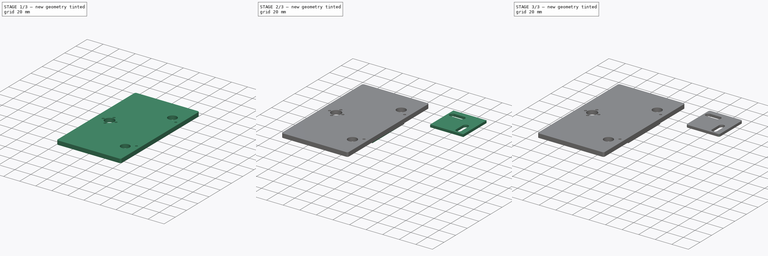
[diagram: build sequence overview — one tinted view per stage of 3, left to right]
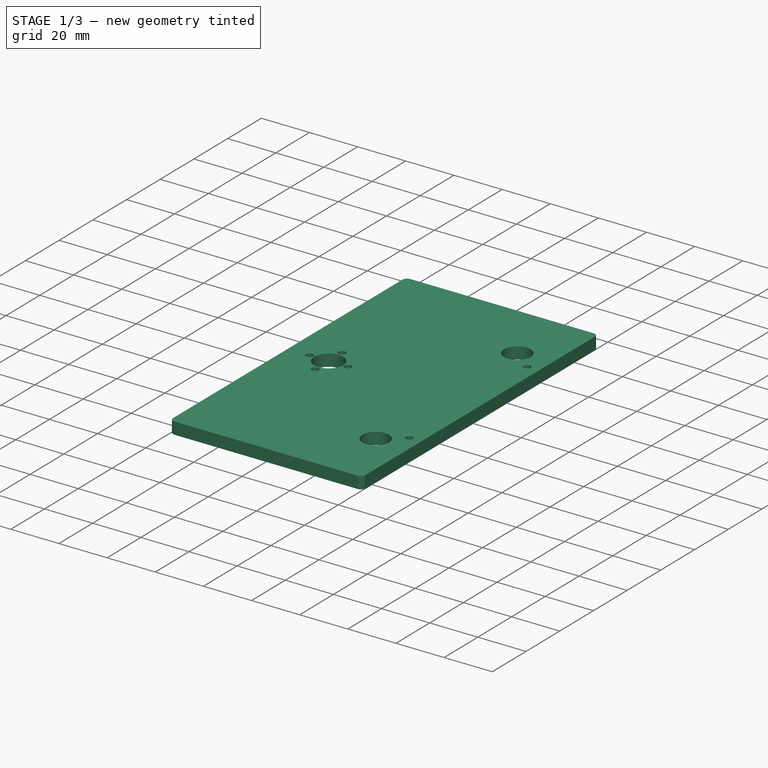
[diagram: stage 1 of 3 — iso view after this stage's code; geometry added in this stage tinted green]
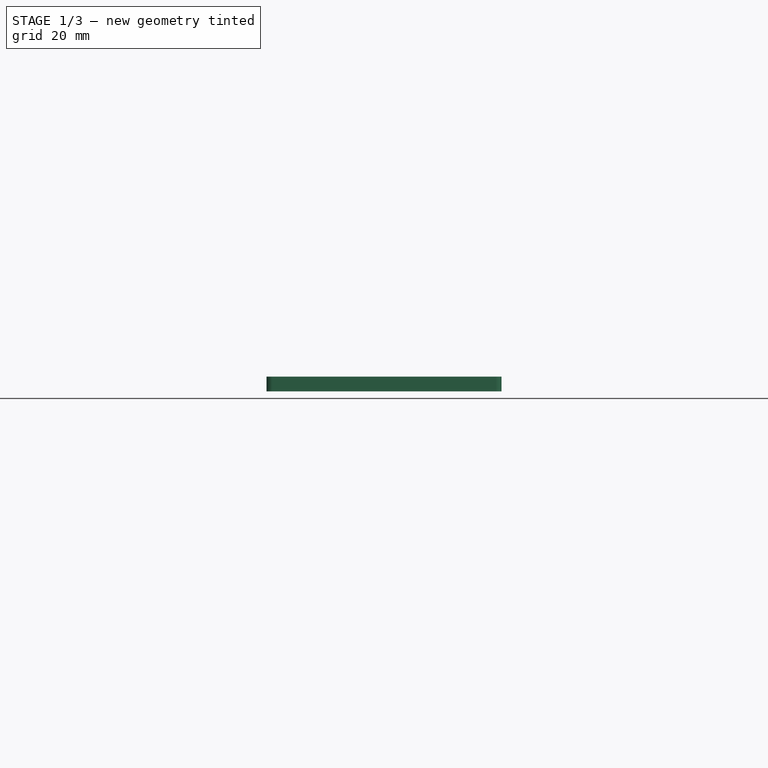
[diagram: stage 1 of 3 — front view after this stage's code; geometry added in this stage tinted green]
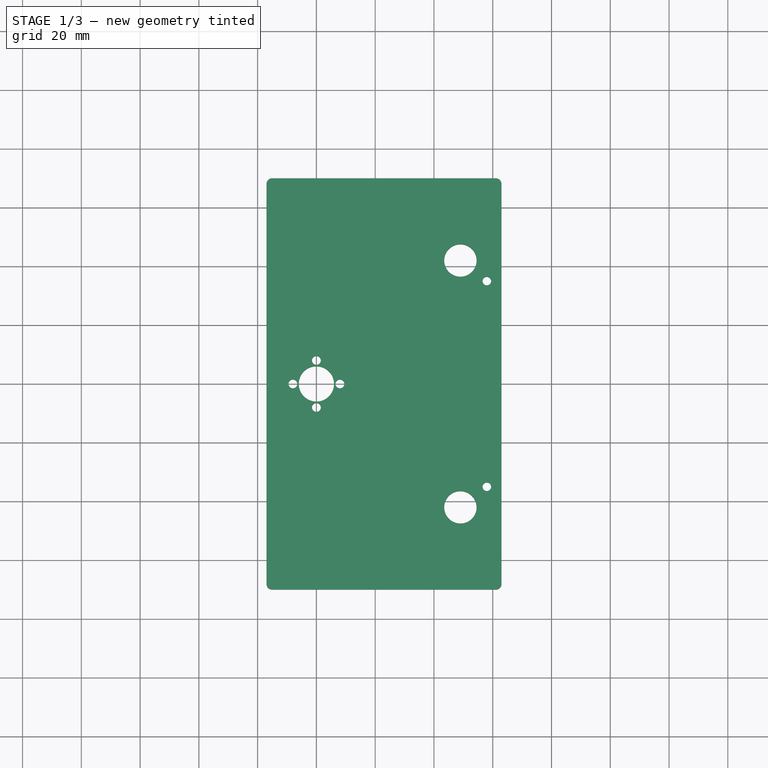
[diagram: stage 1 of 3 — top view after this stage's code; geometry added in this stage tinted green]
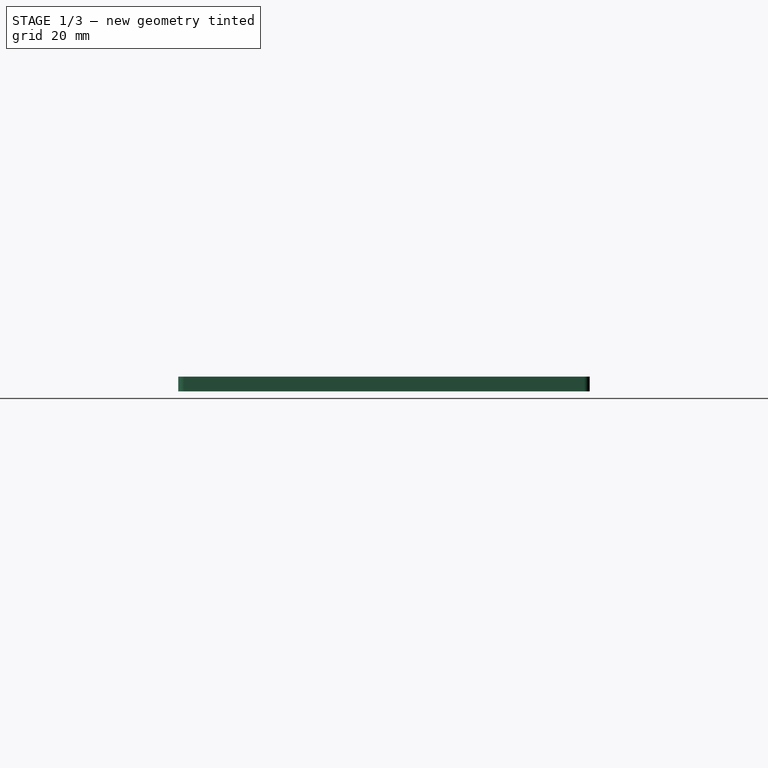
[diagram: stage 1 of 3 — right view after this stage's code; geometry added in this stage tinted green]
FCSTD DOCUMENT  (FreeCAD 1.1R20260414 (Git shallow))
Label: Unnamed3
License: All rights reserved
LicenseURL: https://en.wikipedia.org/wiki/All_rights_reserved
objects: Sketcher::SketchObject×5, PartDesign::Pad×4, App::Point×3, PartDesign::Fillet×3, PartDesign::Body×3, TechDraw::DrawSVGTemplate×3, TechDraw::DrawProjGroupItem×3, TechDraw::DrawPage×3, PartDesign::Hole×1
note: 37 computed .brp shape members not serialized (recipe doc carries the construction recipe); baked Part::Feature solids carry a one-line shape summary decoded from their .brp

FEATURE [App::Point] Origin009  label="Origin011"
  Role = Origin
FEATURE [Sketcher::SketchObject] Sketch002
  ArcFitTolerance = 1e-06
  ExternalTypes = [0]
  FullyConstrained = true
  MakeInternals = false
  MapMode = 5
  Placement = pos=(0,-3.1e-15,36) rot=(0,0,1;0rad)
  _ExternalGeoVersion = 1
  sketch-geometry (11):
    g0: LineSegment StartX=-17 StartY=-70 StartZ=0 EndX=63 EndY=-70 EndZ=0
    g1: LineSegment StartX=63 StartY=-70 StartZ=0 EndX=63 EndY=70 EndZ=0
    g2: LineSegment StartX=63 StartY=70 StartZ=0 EndX=-17 EndY=70 EndZ=0
    g3: LineSegment StartX=-17 StartY=70 StartZ=0 EndX=-17 EndY=-70 EndZ=0
    g4: Circle CenterX=0 CenterY=0 CenterZ=0 NormalX=0 NormalY=0 NormalZ=1 AngleXU=0 Radius=6
    g5: Circle CenterX=0 CenterY=-8 CenterZ=0 NormalX=0 NormalY=0 NormalZ=1 AngleXU=0 Radius=1.5
    g6: Circle CenterX=-8 CenterY=0 CenterZ=0 NormalX=0 NormalY=0 NormalZ=1 AngleXU=0 Radius=1.5
    g7: Circle CenterX=8 CenterY=0 CenterZ=0 NormalX=0 NormalY=0 NormalZ=1 AngleXU=0 Radius=1.5
    g8: Circle CenterX=0 CenterY=8 CenterZ=0 NormalX=0 NormalY=0 NormalZ=1 AngleXU=0 Radius=1.5
    g9: Circle CenterX=49 CenterY=42 CenterZ=0 NormalX=0 NormalY=0 NormalZ=1 AngleXU=0 Radius=5.5
    g10: Circle CenterX=49 CenterY=-42 CenterZ=0 NormalX=0 NormalY=0 NormalZ=1 AngleXU=0 Radius=5.5
  constraints (32):
    c: Coincident(g0,g1)
    c: Coincident(g1,g2)
    c: Coincident(g2,g3)
    c: Coincident(g3,g0)
    c: Horizontal(g0)
    c: Horizontal(g2)
    c: Vertical(g1)
    c: Vertical(g3)
    c: DistanceY(g3,g3) = 140
    c: Distance(g-2,g3) = 17
    c: DistanceX(g0,g0) = 80
    c: Distance(g-1,g0) = 70
    c: Diameter(g4) = 12
    c: Coincident(g4,g-1)
    c: Diameter(g5) = 3
    c: PointOnObject(g5,g-2)
    c: Distance(g5,g4) = 2
    c: PointOnObject(g6,g-1)
    c: PointOnObject(g7,g-1)
    c: PointOnObject(g8,g-2)
    c: Equal(g6,g5)
    c: Equal(g7,g5)
    c: Equal(g8,g7)
    c: Distance(g6,g4) = 2
    c: Distance(g7,g4) = 2
    c: Distance(g8,g4) = 2
    c: Diameter(g9) = 11
    c: Distance(g9,g3) = 66
    c: Equal(g10,g9)
    c: Distance(g10,g3) = 66
    c: Distance(g9,g2) = 28
    c: Distance(g10,g0) = 28
FEATURE [PartDesign::Pad] Pad002
  Direction = (0,0,1)
  Length = 5
  Length2 = 10
  Placement = pos=(0,-3.1e-15,36) rot=(0,0,1;0rad)
  Profile = -> Sketch002
  ReferenceAxis = -> Sketch002 [N_Axis]
  Refine = true
  SideType = 0
  Suppressed = false
  Type = 0
  Type2 = 0
FEATURE [PartDesign::Body] Body
  AllowCompound = true
  Group = -> [Sketch001,Pad,Fillet]
  Origin = -> Origin
  Tip = -> Fillet
FEATURE [PartDesign::Fillet] Fillet001
  Base = -> Pad002 [Edge8,Edge1,Edge2,Edge5]
  BaseFeature = -> Pad002
  Placement = pos=(0,-3.1e-15,36) rot=(0,0,1;0rad)
  Radius = 2
  Refine = true
  SupportTransform = false
  Suppressed = false
  UseAllEdges = false
FEATURE [PartDesign::Body] Body003
  AllowCompound = true
  Group = -> [Sketch,Pad003,Fillet002]
  Origin = -> Origin010
  Tip = -> Fillet002
FEATURE [TechDraw::DrawSVGTemplate] Template
  Height = 210
  Orientation = 1
  Template = <path>
  Width = 297
FEATURE [TechDraw::DrawProjGroupItem] View
  CoarseView = false
  Direction = (0,0,-1)
  Focus = 100
  HardHidden = false
  IsoCount = 0
  IsoHidden = false
  IsoVisible = false
  LockPosition = false
  Perspective = false
  Rotation = 0
  RotationVector = (1,0,0)
  ScaleType = 0
  ScrubCount = 1
  SeamHidden = false
  SeamVisible = false
  SmoothHidden = false
  SmoothVisible = true
  Source = -> [Fillet]
  Type = 0
  X = 148.5
  XDirection = (1e-16,-1,0)
  Y = 105
FEATURE [TechDraw::DrawPage] Page
  KeepUpdated = true
  NextBalloonIndex = 1
  ProjectionType = 0
  Template = -> Template
  Views = -> [View]
FEATURE [TechDraw::DrawSVGTemplate] Template001
  Height = 210
  Orientation = 1
  Template = <path>
  Width = 297
FEATURE [TechDraw::DrawSVGTemplate] Template002
  Height = 210
  Orientation = 1
  Template = <path>
  Width = 297
FEATURE [TechDraw::DrawProjGroupItem] View002
  CoarseView = false
  Direction = (0,0,-1)
  Focus = 100
  HardHidden = false
  IsoCount = 0
  IsoHidden = false
  IsoVisible = false
  LockPosition = false
  Perspective = false
  Rotation = 0
  RotationVector = (1,0,0)
  ScaleType = 0
  ScrubCount = 1
  SeamHidden = false
  SeamVisible = false
  SmoothHidden = false
  SmoothVisible = true
  Source = -> [Body003]
  Type = 0
  X = 148.5
  XDirection = (1,0,0)
  Y = 105
FEATURE [TechDraw::DrawPage] Page002
  KeepUpdated = true
  NextBalloonIndex = 1
  ProjectionType = 0
  Template = -> Template002
  Views = -> [View002]
FEATURE [Sketcher::SketchObject] Sketch003
  ArcFitTolerance = 1e-06
  AttachmentSupport = -> [Fillet001]
  ExternalTypes = [0]
  FullyConstrained = true
  MakeInternals = false
  MapMode = 5
  Placement = pos=(0,-3.1e-15,36) rot=(1,0,0;3.14159rad)
  _ExternalGeoVersion = 1
  sketch-geometry (2):
    g0: Circle CenterX=58 CenterY=35 CenterZ=0 NormalX=0 NormalY=0 NormalZ=1 AngleXU=0 Radius=1.1
    g1: Circle CenterX=58 CenterY=-35 CenterZ=0 NormalX=0 NormalY=0 NormalZ=1 AngleXU=0 Radius=1.1
  constraints (6):
    c: Distance(g0,g-2) = 58
    c: Diameter(g0) = 2.2
    c: Distance(g0,g-1) = 35
    c: Equal(g1,g0)
    c: Distance(g1,g-2) = 58
    c: Distance(g1,g-1) = 35
FEATURE [PartDesign::Hole] Hole
  BaseFeature = -> Fillet001
  BaseProfileType = 7
  CustomThreadClearance = 0
  Depth = 5
  DepthType = 0
  Diameter = 2.9
  DrillForDepth = false
  DrillPoint = 1
  DrillPointAngle = 118
  HoleCutCountersinkAngle = 90
  HoleCutCustomValues = false
  HoleCutDepth = 0
  HoleCutDiameter = 0
  HoleCutType = 0
  ModelThread = false
  Placement = pos=(0,-3.1e-15,36) rot=(0,0,1;0rad)
  Profile = -> Sketch003
  Refine = true
  Suppressed = false
  Tapered = false
  TaperedAngle = 90
  ThreadClass = 0
  ThreadDepth = 5
  ThreadDepthType = 0
  ThreadDiameter = 2.5
  ThreadDirection = 0
  ThreadFit = 0
  ThreadSize = 8
  ThreadType = 1
  Threaded = false
  UseCustomThreadClearance = false
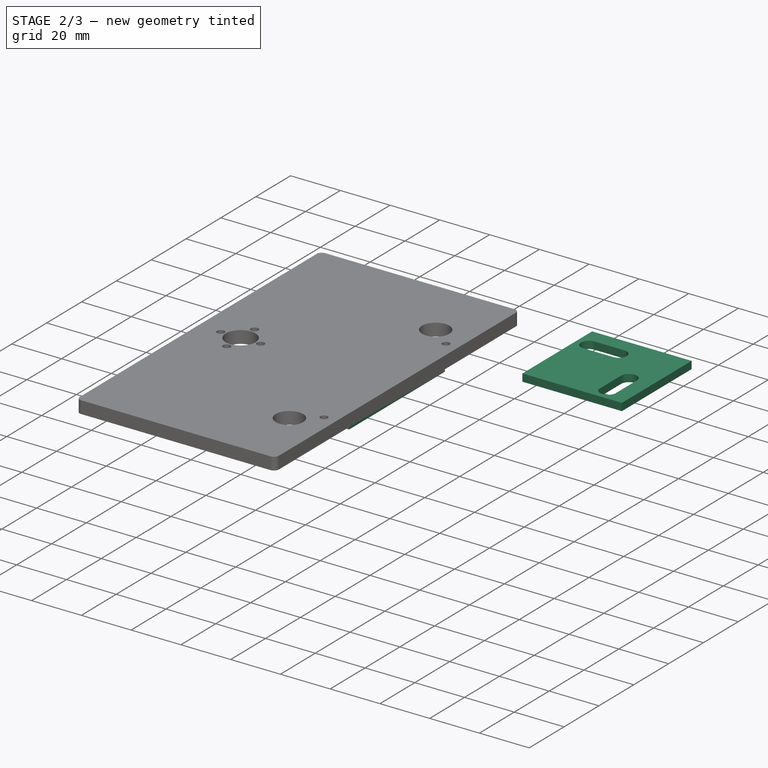
[diagram: stage 2 of 3 — iso view after this stage's code; geometry added in this stage tinted green]
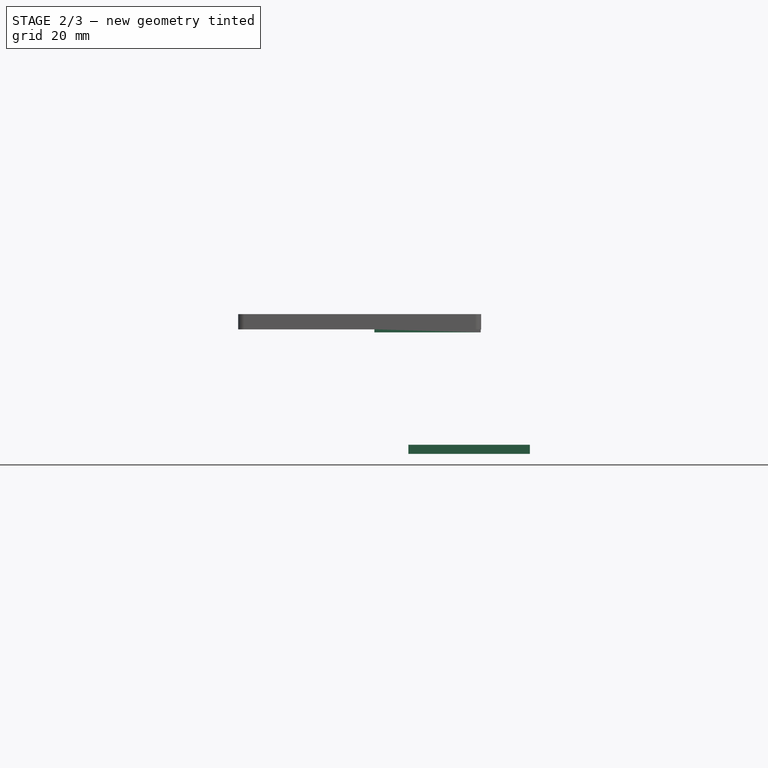
[diagram: stage 2 of 3 — front view after this stage's code; geometry added in this stage tinted green]
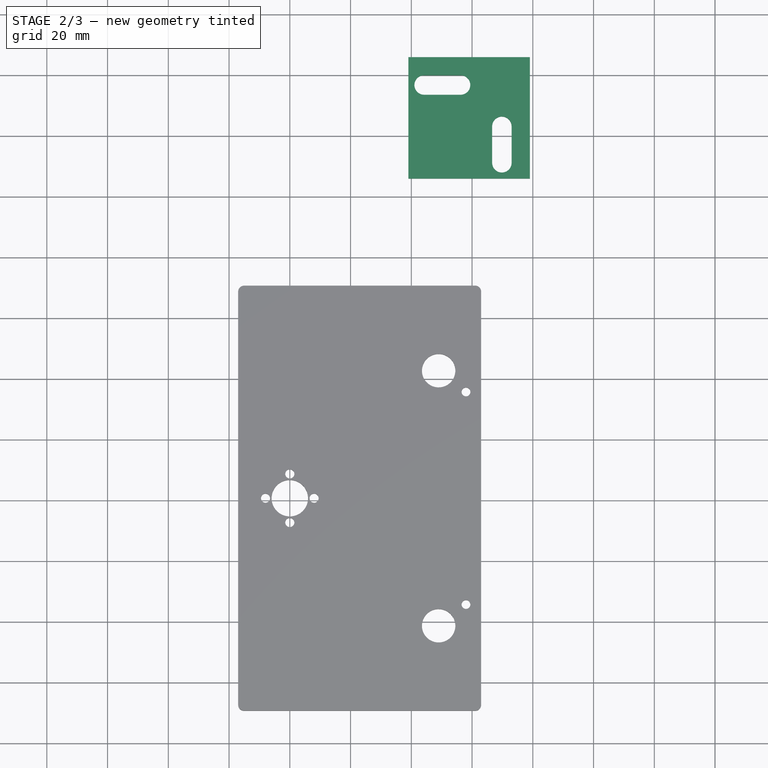
[diagram: stage 2 of 3 — top view after this stage's code; geometry added in this stage tinted green]
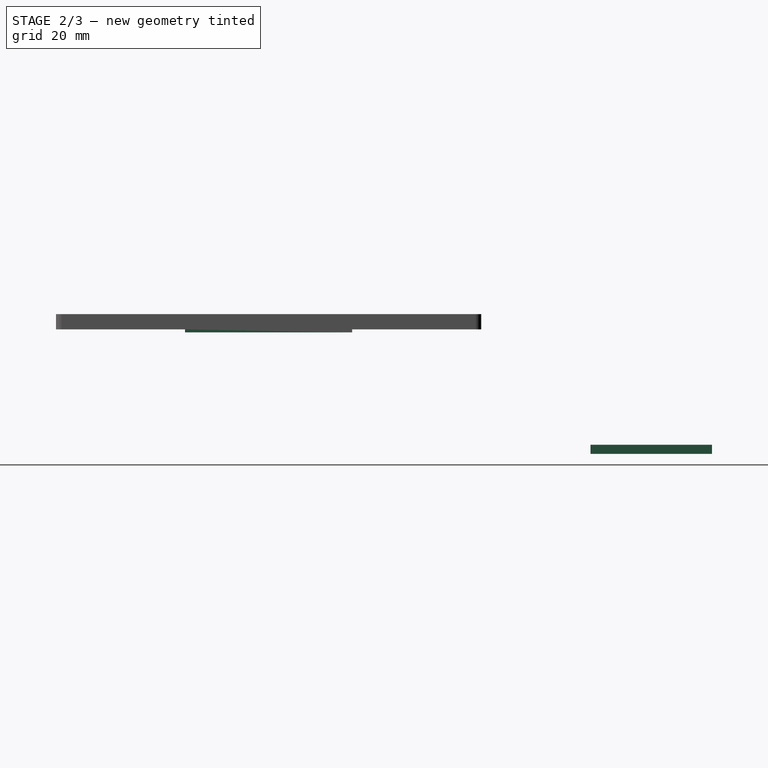
[diagram: stage 2 of 3 — right view after this stage's code; geometry added in this stage tinted green]
FEATURE [App::Point] Origin011  label="Origin013"
  Role = Origin
FEATURE [Sketcher::SketchObject] Sketch
  ArcFitTolerance = 1e-06
  ExternalTypes = [0]
  FullyConstrained = true
  MakeInternals = false
  MapMode = 5
  Placement = pos=(559,126,-2) rot=(0.707107,-0.707107,0;3.14159rad)
  _ExternalGeoVersion = 1
  sketch-geometry (12):
    g0: LineSegment StartX=20 StartY=479.98 StartZ=0 EndX=20 EndY=519.98 EndZ=0
    g1: LineSegment StartX=20 StartY=519.98 StartZ=0 EndX=-20 EndY=519.98 EndZ=0
    g2: LineSegment StartX=-20 StartY=519.98 StartZ=0 EndX=-20 EndY=479.98 EndZ=0
    g3: LineSegment StartX=-20 StartY=479.98 StartZ=0 EndX=20 EndY=479.98 EndZ=0
    g4: ArcOfCircle CenterX=-10.8 CenterY=514.78 CenterZ=0 NormalX=0 NormalY=0 NormalZ=1 AngleXU=0 Radius=3.2 StartAngle=1.4e-14 EndAngle=3.14159
    g5: ArcOfCircle CenterX=-10.8 CenterY=502.78 CenterZ=0 NormalX=0 NormalY=0 NormalZ=1 AngleXU=0 Radius=3.2 StartAngle=3.14159 EndAngle=6.28319
    g6: LineSegment StartX=-7.6 StartY=514.78 StartZ=0 EndX=-7.6 EndY=502.78 EndZ=0
    g7: LineSegment StartX=-14 StartY=514.78 StartZ=0 EndX=-14 EndY=502.78 EndZ=0
    g8: ArcOfCircle CenterX=2.8 CenterY=489.18 CenterZ=0 NormalX=0 NormalY=0 NormalZ=1 AngleXU=0 Radius=3.2 StartAngle=1.5708 EndAngle=4.71239
    g9: ArcOfCircle CenterX=14.8 CenterY=489.18 CenterZ=0 NormalX=0 NormalY=0 NormalZ=1 AngleXU=0 Radius=3.2 StartAngle=4.71239 EndAngle=7.85398
    g10: LineSegment StartX=2.8 StartY=492.38 StartZ=0 EndX=14.8 EndY=492.38 EndZ=0
    g11: LineSegment StartX=2.8 StartY=485.98 StartZ=0 EndX=14.8 EndY=485.98 EndZ=0
  constraints (32):
    c: Coincident(g0,g1)
    c: Coincident(g1,g2)
    c: Coincident(g2,g3)
    c: Coincident(g3,g0)
    c: Vertical(g0)
    c: Vertical(g2)
    c: Horizontal(g1)
    c: Horizontal(g3)
    c: DistanceY(g2,g2) = 40
    c: Distance(g3,g3) = 40
    c: Distance(g-2,g2) = 20
    c: Distance(g-1,g3) = 479.98
    c: Tangent(g4,g6) = 1.5708
    c: Tangent(g4,g7) = -1.5708
    c: Tangent(g5,g6) = 1.5708
    c: Tangent(g5,g7) = -1.5708
    c: Equal(g4,g5)
    c: Distance(g4,g5) = 12
    c: Radius(g4) = 3.2
    c: Vertical(g6)
    c: Tangent(g8,g10) = 1.5708
    c: Tangent(g8,g11) = -1.5708
    c: Tangent(g9,g10) = 1.5708
    c: Tangent(g9,g11) = -1.5708
    c: Equal(g8,g9)
    c: Distance(g8,g9) = 12
    c: Radius(g8) = 3.2
    c: Horizontal(g10)
    c: Distance(g4,g1) = 2
    c: Distance(g9,g0) = 2
    c: Distance(g2,g7) = 6
    c: Distance(g3,g11) = 6
FEATURE [PartDesign::Pad] Pad003
  Direction = (0,0,-1)
  Length = 3
  Length2 = 10
  Placement = pos=(559,126,-2) rot=(0.707107,-0.707107,0;3.14159rad)
  Profile = -> Sketch
  ReferenceAxis = -> Sketch [N_Axis]
  Refine = true
  SideType = 0
  Suppressed = false
  Type = 0
  Type2 = 0
FEATURE [Sketcher::SketchObject] Sketch004
  ArcFitTolerance = 1e-06
  AttachmentSupport = -> [Hole]
  ExternalTypes = [0]
  FullyConstrained = true
  MakeInternals = false
  MapMode = 5
  Placement = pos=(0,-3.1e-15,36) rot=(1,0,0;3.14159rad)
  _ExternalGeoVersion = 1
  sketch-geometry (4):
    g0: LineSegment StartX=27.85 StartY=-27.5 StartZ=0 EndX=62.85 EndY=-27.5 EndZ=0
    g1: LineSegment StartX=62.85 StartY=27.5 StartZ=0 EndX=27.85 EndY=27.5 EndZ=0
    g2: LineSegment StartX=27.85 StartY=27.5 StartZ=0 EndX=27.85 EndY=-27.5 EndZ=0
    g3: LineSegment StartX=62.85 StartY=-27.5 StartZ=0 EndX=62.85 EndY=27.5 EndZ=0
  constraints (12):
    c: Coincident(g1,g2)
    c: Coincident(g2,g0)
    c: Vertical(g2)
    c: Distance(g0,g1) = 55
    c: Horizontal(g1)
    c: Coincident(g1,g3)
    c: Horizontal(g0)
    c: Coincident(g0,g3)
    c: Distance(g1,g1) = 35
    c: Distance(g-1,g1) = 27.5
    c: Distance(g-2,g2) = 27.85
    c: Distance(g0,g0) = 35
FEATURE [PartDesign::Pad] Pad004
  BaseFeature = -> Hole
  Direction = (0,0,-1)
  Length = 1
  Length2 = 10
  Placement = pos=(0,-3.1e-15,36) rot=(0,0,1;0rad)
  Profile = -> Sketch004
  ReferenceAxis = -> Sketch004 [N_Axis]
  Refine = true
  SideType = 0
  Suppressed = false
  Type = 0
  Type2 = 0
FEATURE [PartDesign::Body] Body002
  AllowCompound = true
  Group = -> [Sketch002,Pad002,Fillet001,Sketch003,Hole,Sketch004,Pad004]
  Origin = -> Origin008
  Tip = -> Pad004
FEATURE [TechDraw::DrawProjGroupItem] View003
  CoarseView = false
  Direction = (0,0,-1)
  Focus = 100
  HardHidden = false
  IsoCount = 0
  IsoHidden = false
  IsoVisible = false
  LockPosition = false
  Perspective = false
  Rotation = 0
  RotationVector = (1,0,0)
  ScaleType = 0
  ScrubCount = 1
  SeamHidden = false
  SeamVisible = false
  SmoothHidden = false
  SmoothVisible = true
  Source = -> [Body002]
  Type = 0
  X = 148.5
  XDirection = (1,0,0)
  Y = 105
FEATURE [TechDraw::DrawPage] Page001
  KeepUpdated = true
  NextBalloonIndex = 1
  ProjectionType = 0
  Template = -> Template001
  Views = -> [View003]
note: 3 file-system paths scrubbed to <path> (originals preserved in the JSON sidecar)
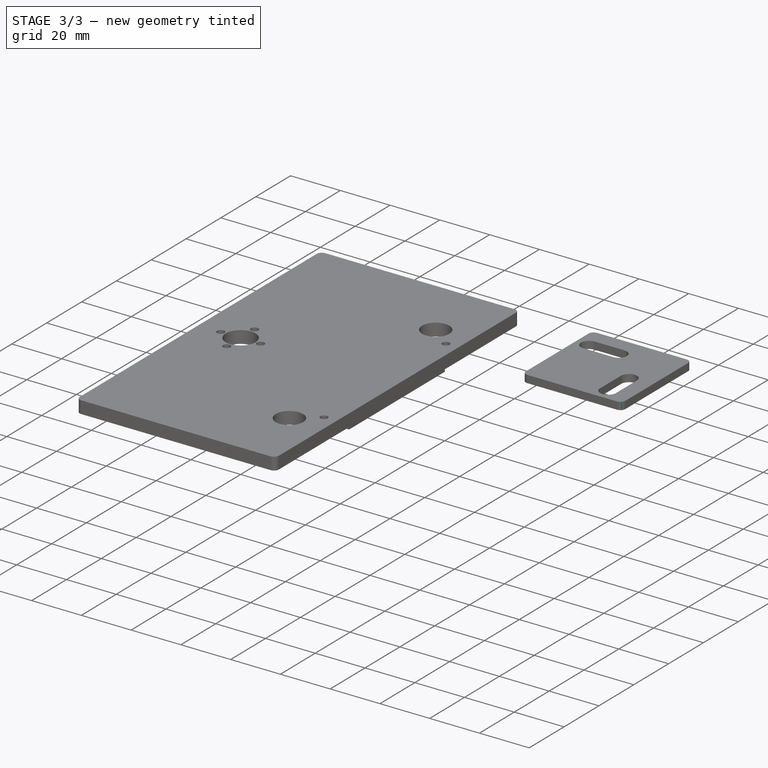
[diagram: stage 3 of 3 — iso view after this stage's code; geometry added in this stage tinted green]
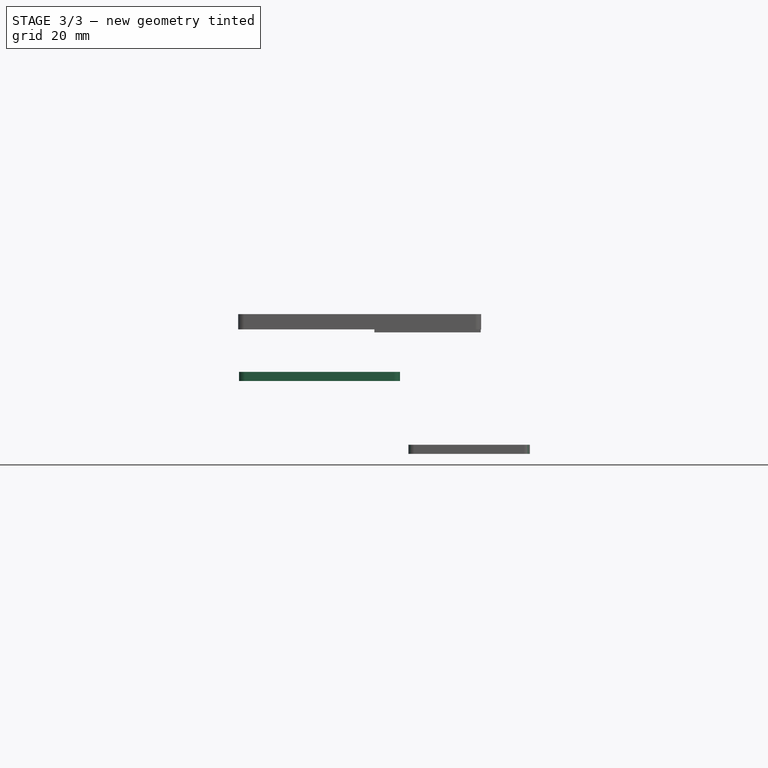
[diagram: stage 3 of 3 — front view after this stage's code; geometry added in this stage tinted green]
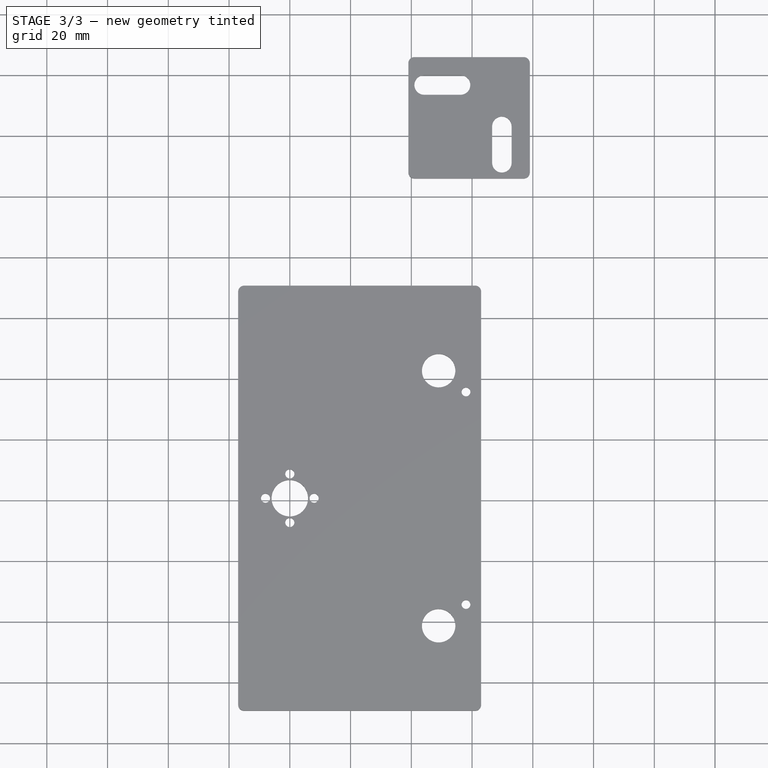
[diagram: stage 3 of 3 — top view after this stage's code; geometry added in this stage tinted green]
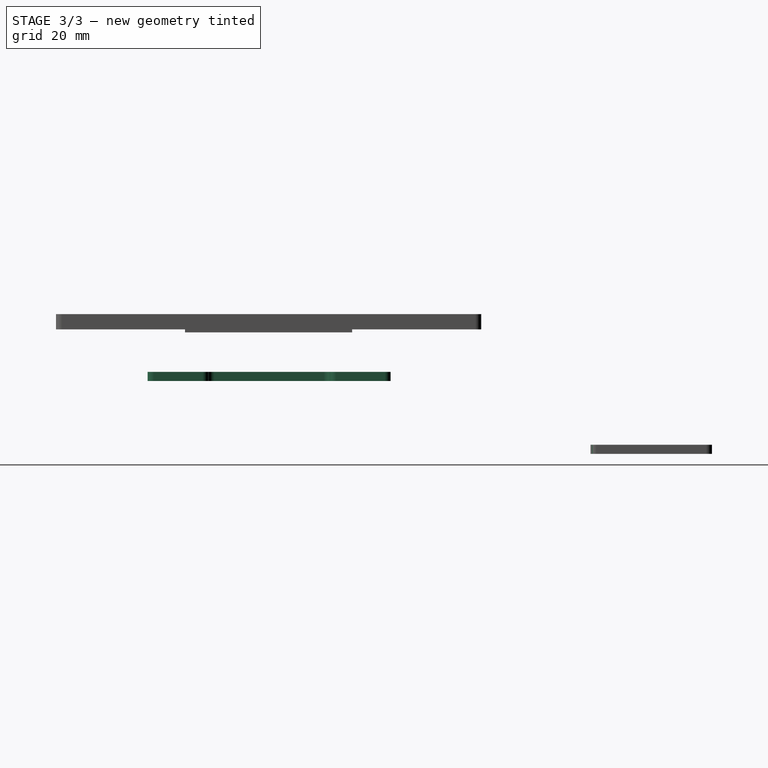
[diagram: stage 3 of 3 — right view after this stage's code; geometry added in this stage tinted green]
FEATURE [App::Point] Origin001
  Role = Origin
FEATURE [Sketcher::SketchObject] Sketch001
  ArcFitTolerance = 1e-06
  ExternalTypes = [0]
  FullyConstrained = true
  MakeInternals = false
  MapMode = 5
  Placement = pos=(0,0,19) rot=(0,0,1;0rad)
  _ExternalGeoVersion = 1
  sketch-geometry (24):
    g0: LineSegment StartX=15 StartY=-19.81 StartZ=0 EndX=36.27 EndY=-19.81 EndZ=0
    g1: LineSegment StartX=36.27 StartY=-19.81 StartZ=0 EndX=36.27 EndY=-39.81 EndZ=0
    g2: LineSegment StartX=36.27 StartY=-39.81 StartZ=0 EndX=-16.73 EndY=-39.81 EndZ=0
    g3: LineSegment StartX=-16.73 StartY=-39.81 StartZ=0 EndX=-16.73 EndY=40.19 EndZ=0
    g4: LineSegment StartX=-16.73 StartY=40.19 StartZ=0 EndX=36.27 EndY=40.19 EndZ=0
    g5: LineSegment StartX=36.27 StartY=40.19 StartZ=0 EndX=36.27 EndY=20.19 EndZ=0
    g6: LineSegment StartX=36.27 StartY=20.19 StartZ=0 EndX=15 EndY=20.19 EndZ=0
    g7: LineSegment StartX=15 StartY=20.19 StartZ=0 EndX=15 EndY=-19.81 EndZ=0
    g8: Circle CenterX=-13.5 CenterY=-14.5 CenterZ=0 NormalX=0 NormalY=0 NormalZ=1 AngleXU=0 Radius=1.2
    g9: Circle CenterX=-13.5 CenterY=-22.5 CenterZ=0 NormalX=0 NormalY=0 NormalZ=1 AngleXU=0 Radius=1.2
    g10: Circle CenterX=-13.5 CenterY=-30.5 CenterZ=0 NormalX=0 NormalY=0 NormalZ=1 AngleXU=0 Radius=1.2
    g11: Circle CenterX=-8 CenterY=-35.99 CenterZ=0 NormalX=0 NormalY=0 NormalZ=1 AngleXU=0 Radius=1.2
    g12: Circle CenterX=8 CenterY=-35.99 CenterZ=0 NormalX=0 NormalY=0 NormalZ=1 AngleXU=0 Radius=1.2
    g13: Circle CenterX=13.49 CenterY=-30.51 CenterZ=0 NormalX=0 NormalY=0 NormalZ=1 AngleXU=0 Radius=1.2
    g14: Circle CenterX=13.49 CenterY=-22.51 CenterZ=0 NormalX=0 NormalY=0 NormalZ=1 AngleXU=0 Radius=1.2
    g15: Circle CenterX=0 CenterY=0 CenterZ=0 NormalX=0 NormalY=0 NormalZ=1 AngleXU=0 Radius=11.75
    g16: ArcOfCircle CenterX=21.07 CenterY=30.19 CenterZ=0 NormalX=0 NormalY=0 NormalZ=1 AngleXU=0 Radius=3.2 StartAngle=1.5708 EndAngle=4.71239
    g17: ArcOfCircle CenterX=31.07 CenterY=30.19 CenterZ=0 NormalX=0 NormalY=0 NormalZ=1 AngleXU=0 Radius=3.2 StartAngle=4.71239 EndAngle=7.85398
    g18: LineSegment StartX=21.07 StartY=33.39 StartZ=0 EndX=31.07 EndY=33.39 EndZ=0
    g19: LineSegment StartX=21.07 StartY=26.99 StartZ=0 EndX=31.07 EndY=26.99 EndZ=0
    g20: ArcOfCircle CenterX=21.07 CenterY=-29.81 CenterZ=0 NormalX=0 NormalY=0 NormalZ=1 AngleXU=0 Radius=3.2 StartAngle=1.5708 EndAngle=4.71239
    g21: ArcOfCircle CenterX=31.07 CenterY=-29.81 CenterZ=0 NormalX=0 NormalY=0 NormalZ=1 AngleXU=0 Radius=3.2 StartAngle=4.71239 EndAngle=7.85398
    g22: LineSegment StartX=21.07 StartY=-26.61 StartZ=0 EndX=31.07 EndY=-26.61 EndZ=0
    g23: LineSegment StartX=21.07 StartY=-33.01 StartZ=0 EndX=31.07 EndY=-33.01 EndZ=0
  constraints (67):
    c: Horizontal(g0)
    c: Coincident(g0,g1)
    c: Vertical(g1)
    c: Coincident(g1,g2)
    c: Horizontal(g2)
    c: Coincident(g2,g3)
    c: Vertical(g3)
    c: Coincident(g3,g4)
    c: Horizontal(g4)
    c: Coincident(g4,g5)
    c: Vertical(g5)
    c: Coincident(g5,g6)
    c: Horizontal(g6)
    c: Coincident(g6,g7)
    c: Coincident(g7,g0)
    c: Vertical(g7)
    c: DistanceY(g1,g1) = 20
    c: DistanceX(g2,g2) = 53
    c: Equal(g5,g1)
    c: DistanceY(g7,g7) = 40
    c: Equal(g4,g2)
    c: Distance(g-1,g4) = 40.19
    c: Distance(g-2,g3) = 16.73
    c: Distance(g-2,g7) = 15
    c: Radius(g8) = 1.2
    c: Distance(g8,g3) = 3.23
    c: DistanceY(g8,g-1) = 14.5
    c: Equal(g9,g8)
    c: Equal(g10,g9)
    c: Equal(g11,g10)
    c: Equal(g12,g11)
    c: Equal(g13,g12)
    c: Equal(g14,g13)
    c: Distance(g9,g3) = 3.23
    c: Distance(g10,g3) = 3.23
    c: DistanceY(g9,g8) = 8
    c: DistanceY(g10,g9) = 8
    c: Distance(g11,g2) = 3.82
    c: Distance(g12,g2) = 3.82
    c: Distance(g11,g3) = 8.73
    c: DistanceX(g11,g12) = 16
    c: Distance(g13,g2) = 9.3
    c: DistanceY(g13,g14) = 8
    c: Distance(g13,g1) = 22.78
    c: Diameter(g15) = 23.5
    c: Coincident(g15,g-1)
    c: Tangent(g16,g18) = 1.5708
    c: Tangent(g16,g19) = -1.5708
    c: Tangent(g17,g18) = 1.5708
    c: Tangent(g17,g19) = -1.5708
    c: Equal(g16,g17)
    c: Distance(g16,g17) = 10
    c: Radius(g16) = 3.2
    c: Horizontal(g18)
    c: Distance(g4,g18) = 6.8
    c: Distance(g17,g5) = 2
    c: Tangent(g20,g22) = 1.5708
    c: Tangent(g20,g23) = -1.5708
    c: Tangent(g21,g22) = 1.5708
    c: Tangent(g21,g23) = -1.5708
    c: Equal(g20,g21)
    c: Distance(g20,g21) = 10
    c: Radius(g20) = 3.2
    c: Horizontal(g22)
    c: Distance(g0,g22) = 6.8
    c: Distance(g21,g1) = 2
    c: Distance(g14,g1) = 22.78
FEATURE [PartDesign::Pad] Pad
  Direction = (0,0,1)
  Length = 3
  Length2 = 10
  Placement = pos=(0,0,19) rot=(0,0,1;0rad)
  Profile = -> Sketch001
  ReferenceAxis = -> Sketch001 [N_Axis]
  Refine = true
  SideType = 0
  Suppressed = false
  Type = 0
  Type2 = 0
FEATURE [PartDesign::Fillet] Fillet
  Base = -> Pad [Edge11,Edge14,Edge17,Edge2,Edge5,Edge8,Edge20,Edge1]
  BaseFeature = -> Pad
  Placement = pos=(0,0,19) rot=(0,0,1;0rad)
  Radius = 2
  Refine = true
  SupportTransform = false
  Suppressed = false
  UseAllEdges = false
FEATURE [PartDesign::Fillet] Fillet002
  Base = -> Pad003 [Edge5,Edge2,Edge1,Edge8]
  BaseFeature = -> Pad003
  Placement = pos=(559,126,-2) rot=(0.707107,-0.707107,0;3.14159rad)
  Radius = 2
  Refine = true
  SupportTransform = false
  Suppressed = false
  UseAllEdges = false
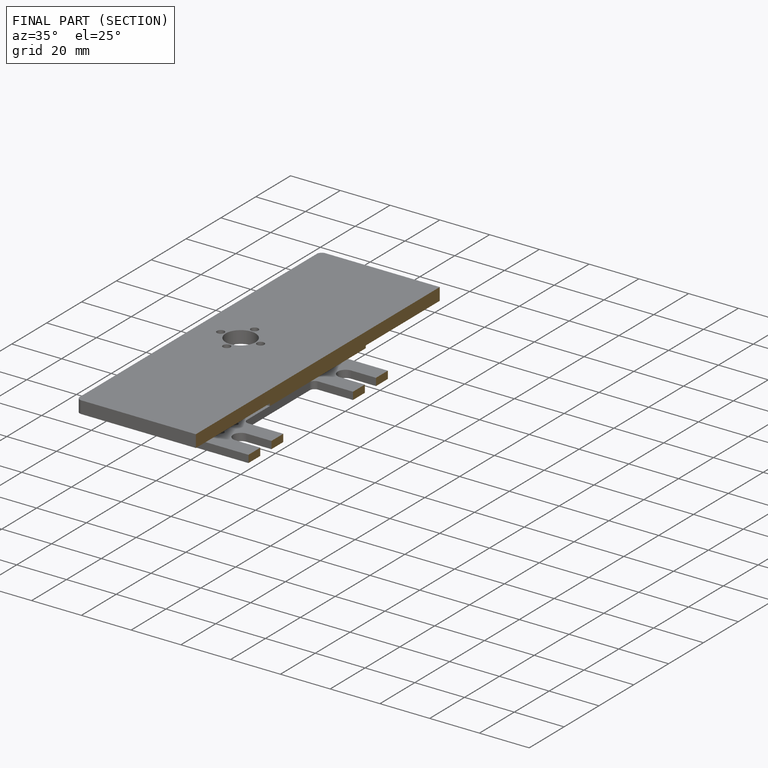
[diagram: finished part — half-section view (interior)]
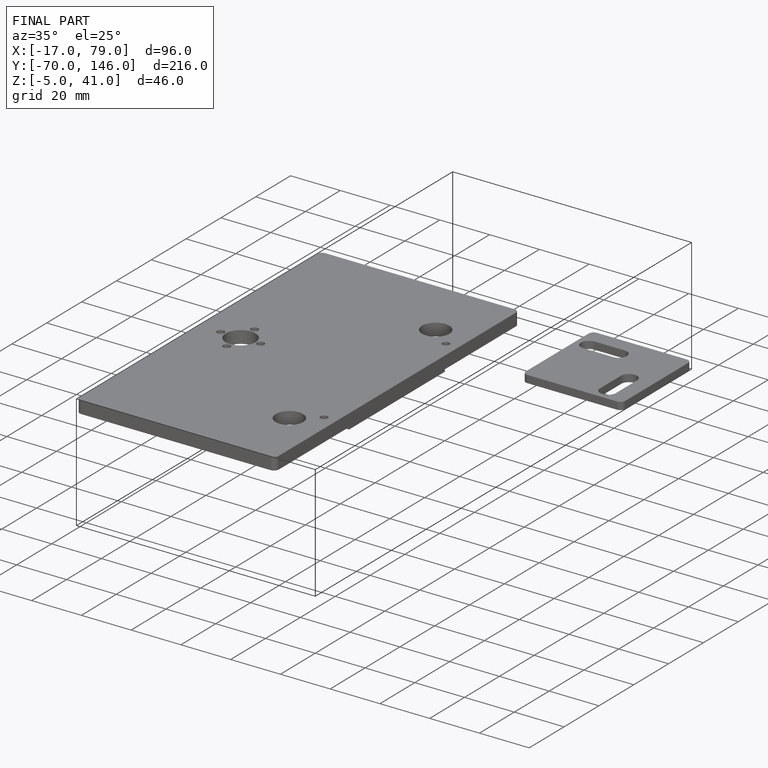
[diagram: finished part — iso view with bounding-box wireframe]
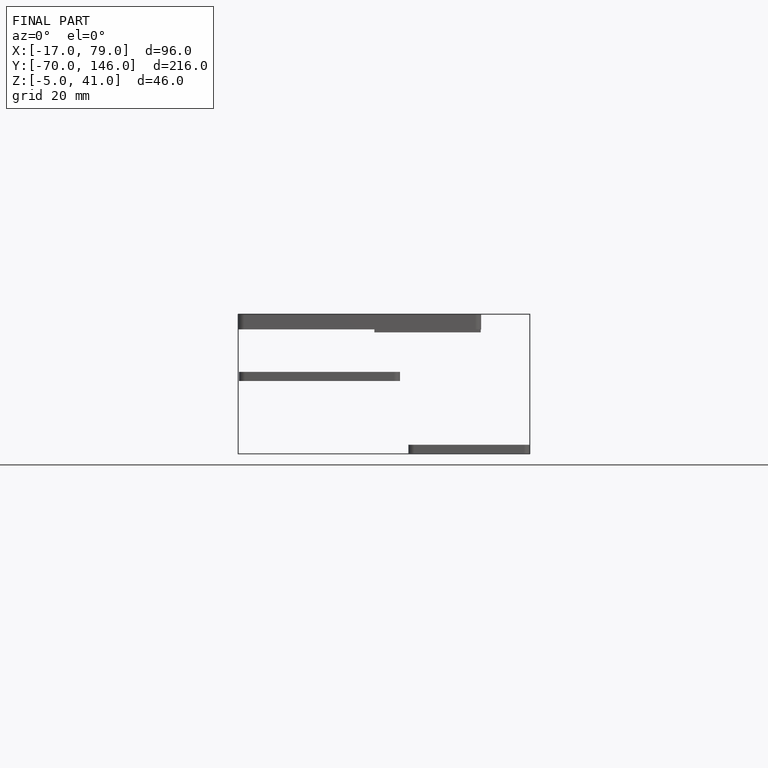
[diagram: finished part — front view with bounding-box wireframe]
